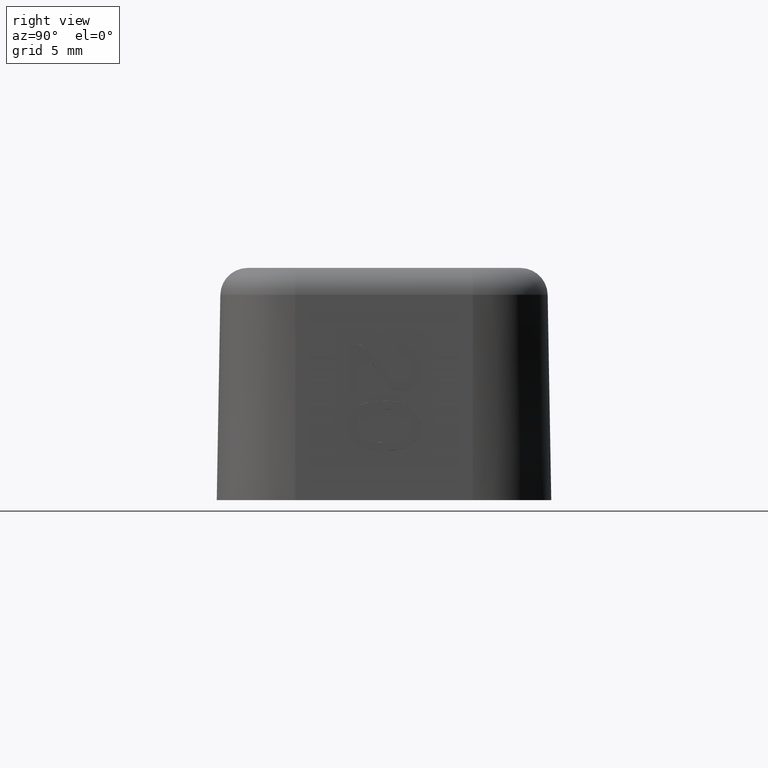
[diagram: clean part render]
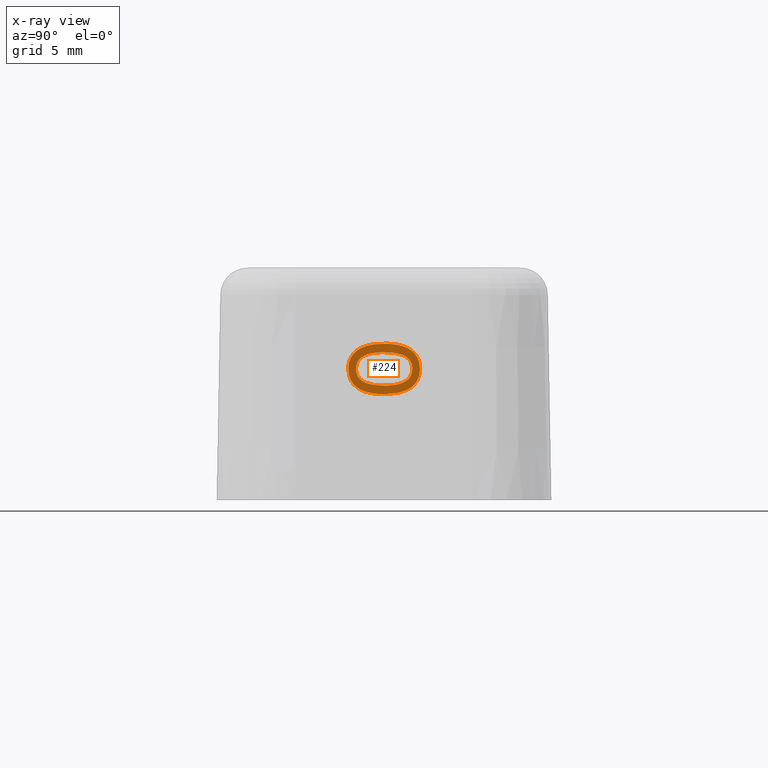
[diagram: x-ray — body ghosted, one internal face saturated and labeled with its STEP entity id]
A machine part, right view, then the same camera in x-ray: the body is ghosted and one INTERNAL B-rep face — a face not visible from any outside direction — is saturated and labeled: STEP entity #224.
In plain terms, the highlighted planar face has unit normal (0.9998, -0, -0.0175).
Its self-contained STEP definition (entity closure, byte-faithful):
#224=ADVANCED_FACE('',(#487,#488),#489,.T.);
#487=FACE_BOUND('',#887,.T.);
#488=FACE_OUTER_BOUND('',#888,.T.);
#489=PLANE('',#889);
#887=EDGE_LOOP('',(#1853,#1854));
#888=EDGE_LOOP('',(#1855,#1856,#1857));
#889=AXIS2_PLACEMENT_3D('',#1858,#1859,#1860);
#1853=ORIENTED_EDGE('',*,*,#2884,.T.);
#1854=ORIENTED_EDGE('',*,*,#2885,.T.);
#1855=ORIENTED_EDGE('',*,*,#2886,.T.);
#1856=ORIENTED_EDGE('',*,*,#2887,.T.);
#1857=ORIENTED_EDGE('',*,*,#2888,.T.);
#1858=CARTESIAN_POINT('',(-28.0298780649777,123.587462167545,-331.289205966349));
#1859=DIRECTION('',(0.999847695156391,-6.65662723956162E-17,-0.0174524064372836));
#1860=DIRECTION('',(0.0174524064372836,3.05046418192992E-16,0.999847695156391));
#2884=EDGE_CURVE('',#3437,#3438,#3439,.T.);
#2885=EDGE_CURVE('',#3438,#3437,#3440,.T.);
#2886=EDGE_CURVE('',#3441,#3442,#3443,.T.);
#2887=EDGE_CURVE('',#3442,#3444,#3445,.T.);
#2888=EDGE_CURVE('',#3444,#3441,#3446,.T.);
#3437=VERTEX_POINT('',#4790);
#3438=VERTEX_POINT('',#4791);
#3439=B_SPLINE_CURVE_WITH_KNOTS('',3,(#4792,#4793,#4794,#4795,#4796,#4797,#4798,#4799,#4800,#4801,#4802,#4803,#4804,#4805,#4806,#4807,#4808,#4809,#4810,#4811,#4812,#4813,#4814,#4815,#4816,#4817,#4818,#4819),.UNSPECIFIED.,.F.,.F.,(4,2,2,2,2,2,2,2,2,2,2,2,2,4),(0.0,0.000338266159121295,0.00067653231824259,0.00101479847736388,0.00135306463648518,0.00169133079560647,0.00202959695472777,0.00270612927297037,0.00338266159121296,0.00405919390945556,0.00439746006857685,0.00473572622769815,0.00507399238681944,0.00541225854594074),.UNSPECIFIED.);
#3440=B_SPLINE_CURVE_WITH_KNOTS('',3,(#4820,#4821,#4822,#4823,#4824,#4825,#4826,#4827,#4828,#4829,#4830,#4831,#4832,#4833,#4834,#4835,#4836,#4837,#4838,#4839,#4840,#4841,#4842,#4843,#4844,#4845),.UNSPECIFIED.,.F.,.F.,(4,2,2,2,2,2,2,2,2,2,2,2,4),(0.0,0.000339268919099863,0.000678537838199726,0.00101780675729959,0.00135707567639945,0.00169634459549931,0.00203561351459918,0.00271415135279891,0.00339268919099864,0.00407122702919837,0.0047497648673981,0.00508903378649797,0.00542830270559783),.UNSPECIFIED.);
#3441=VERTEX_POINT('',#4846);
#3442=VERTEX_POINT('',#4847);
#3443=B_SPLINE_CURVE_WITH_KNOTS('',3,(#4848,#4849,#4850,#4851,#4852,#4853,#4854,#4855,#4856,#4857,#4858,#4859,#4860,#4861),.UNSPECIFIED.,.F.,.F.,(4,2,2,2,2,2,4),(0.003654790492013,0.00455731255545229,0.00500857358717193,0.00545983461889158,0.00591109565061122,0.00636235668233087,0.00726487874577015),.UNSPECIFIED.);
#3444=VERTEX_POINT('',#4862);
#3445=B_SPLINE_CURVE_WITH_KNOTS('',3,(#4863,#4864,#4865,#4866,#4867,#4868,#4869,#4870,#4871,#4872,#4873,#4874,#4875,#4876,#4877,#4878,#4879,#4880,#4881,#4882,#4883,#4884,#4885,#4886,#4887,#4888),.UNSPECIFIED.,.F.,.F.,(4,2,2,2,2,2,2,2,2,2,2,2,4),(0.0,0.000452689793873271,0.000905379587746543,0.00135806938161981,0.00181075917549309,0.00271613876323963,0.00362151835098618,0.00452689793873272,0.004979587732606,0.00543227752647927,0.00588496732035255,0.00633765711422582,0.00724303670197236),.UNSPECIFIED.);
#3446=B_SPLINE_CURVE_WITH_KNOTS('',3,(#4889,#4890,#4891,#4892,#4893,#4894,#4895,#4896,#4897,#4898,#4899,#4900,#4901,#4902),.UNSPECIFIED.,.F.,.F.,(4,2,2,2,2,2,4),(0.0,0.000456848811501623,0.000913697623003246,0.00137054643450487,0.00182739524600649,0.00274109286900975,0.003654790492013),.UNSPECIFIED.);
#4790=CARTESIAN_POINT('',(-22.0796201602783,7.947743191,9.60084108700129));
#4791=CARTESIAN_POINT('',(-22.079506979944,12.072256809,9.60732518401296));
#4792=CARTESIAN_POINT('',(-22.0796201602783,7.947743191,9.60084108700129));
#4793=CARTESIAN_POINT('',(-22.0776326515806,7.947743191,9.71470538403724));
#4794=CARTESIAN_POINT('',(-22.0756779201533,7.96099792114396,9.82669187250339));
#4795=CARTESIAN_POINT('',(-22.0718621889374,8.02541131780538,10.0452949674555));
#4796=CARTESIAN_POINT('',(-22.0700988750524,8.07541004642456,10.14631515227));
#4797=CARTESIAN_POINT('',(-22.0669281594676,8.21186711509721,10.3279653264621));
#4798=CARTESIAN_POINT('',(-22.0655810570799,8.29575744638131,10.4051407705656));
#4799=CARTESIAN_POINT('',(-22.0633221757825,8.48327143980357,10.5345519934247));
#4800=CARTESIAN_POINT('',(-22.062435932954,8.58389568002644,10.5853248110634));
#4801=CARTESIAN_POINT('',(-22.0609807366655,8.79290327468824,10.6686929505984));
#4802=CARTESIAN_POINT('',(-22.0604104440486,8.90223977607243,10.7013649927364));
#4803=CARTESIAN_POINT('',(-22.0595125673401,9.12112389626906,10.7528043149198));
#4804=CARTESIAN_POINT('',(-22.059180357341,9.23127053688734,10.7718366130191));
#4805=CARTESIAN_POINT('',(-22.0584242841553,9.56316247648857,10.8151520168183));
#4806=CARTESIAN_POINT('',(-22.0582362365294,9.78633117469699,10.8259252580896));
#4807=CARTESIAN_POINT('',(-22.0582223042741,10.234854612302,10.826723436461));
#4808=CARTESIAN_POINT('',(-22.0583986693135,10.4597711661587,10.816619490125));
#4809=CARTESIAN_POINT('',(-22.0593897644695,10.9033654942869,10.7598396866627));
#4810=CARTESIAN_POINT('',(-22.0602016474918,11.1259988529907,10.7133269394697));
#4811=CARTESIAN_POINT('',(-22.0623756681076,11.4390005031374,10.5887773818041));
#4812=CARTESIAN_POINT('',(-22.0632759340639,11.5407978313589,10.537201179708));
#4813=CARTESIAN_POINT('',(-22.0655014456582,11.7252896458464,10.4097017058654));
#4814=CARTESIAN_POINT('',(-22.0668540521757,11.8094909695647,10.3322109303767));
#4815=CARTESIAN_POINT('',(-22.0699910123081,11.9444483965175,10.1524946047505));
#4816=CARTESIAN_POINT('',(-22.0717868638063,11.9952508200987,10.0496103413228));
#4817=CARTESIAN_POINT('',(-22.0755517012594,12.0586998592815,9.83392294808855));
#4818=CARTESIAN_POINT('',(-22.0775271338019,12.072256809,9.72075049352613));
#4819=CARTESIAN_POINT('',(-22.079506979944,12.072256809,9.60732518401296));
#4820=CARTESIAN_POINT('',(-22.079506979944,12.072256809,9.60732518401296));
#4821=CARTESIAN_POINT('',(-22.0815005962823,12.072256809,9.49311098048739));
#4822=CARTESIAN_POINT('',(-22.083461423134,12.0590694961169,9.38077528538721));
#4823=CARTESIAN_POINT('',(-22.087290444198,11.9954397703828,9.16141081554271));
#4824=CARTESIAN_POINT('',(-22.0890690608961,11.9459557999266,9.05951393315532));
#4825=CARTESIAN_POINT('',(-22.0922679294549,11.8112029807138,8.87625087615951));
#4826=CARTESIAN_POINT('',(-22.093641236956,11.7277924588566,8.79757414211269));
#4827=CARTESIAN_POINT('',(-22.095940407714,11.5415260202632,8.66585473760327));
#4828=CARTESIAN_POINT('',(-22.0968516646782,11.440716166485,8.61364886109137));
#4829=CARTESIAN_POINT('',(-22.0983408545248,11.2318655958679,8.52833323191599));
#4830=CARTESIAN_POINT('',(-22.0989251325794,11.122439857058,8.4948599645874));
#4831=CARTESIAN_POINT('',(-22.0998442690642,10.9028921491244,8.44220267063873));
#4832=CARTESIAN_POINT('',(-22.1001829357439,10.7924092295269,8.4228004695571));
#4833=CARTESIAN_POINT('',(-22.1009490707813,10.45949505804,8.37890862266032));
#4834=CARTESIAN_POINT('',(-22.1011312993738,10.2356255196236,8.36846875358832));
#4835=CARTESIAN_POINT('',(-22.101117158721,9.78566603547413,8.36927887104164));
#4836=CARTESIAN_POINT('',(-22.1009229550388,9.56004217626186,8.3804047925445));
#4837=CARTESIAN_POINT('',(-22.0998883287652,9.11543659546007,8.43967849205914));
#4838=CARTESIAN_POINT('',(-22.0990499622231,8.89237885641343,8.48770847909045));
#4839=CARTESIAN_POINT('',(-22.0960904033748,8.47470171023503,8.65726149195316));
#4840=CARTESIAN_POINT('',(-22.0939294020817,8.27939874095235,8.7810651731194));
#4841=CARTESIAN_POINT('',(-22.0891402131641,8.07477370919725,9.05543762245234));
#4842=CARTESIAN_POINT('',(-22.0873860419123,8.02543155294219,9.15593402616002));
#4843=CARTESIAN_POINT('',(-22.0835884981732,7.9613289336898,9.37349516126486));
#4844=CARTESIAN_POINT('',(-22.0816088156148,7.947743191,9.4869110990787));
#4845=CARTESIAN_POINT('',(-22.0796201602783,7.947743191,9.60084108700129));
#4846=CARTESIAN_POINT('',(-22.1119897338163,10.0294552500457,7.74638946099661));
#4847=CARTESIAN_POINT('',(-22.079506979944,12.62997406,9.60732518401296));
#4848=CARTESIAN_POINT('',(-22.1119897338165,10.0294552500457,7.74638946099662));
#4849=CARTESIAN_POINT('',(-22.1119897338186,10.3309547658078,7.74638946087298));
#4850=CARTESIAN_POINT('',(-22.1116422399077,10.6293263400868,7.76629737369772));
#4851=CARTESIAN_POINT('',(-22.1102592473012,11.0691267051542,7.84552896705944));
#4852=CARTESIAN_POINT('',(-22.1096526542811,11.2144162595519,7.88028065790957));
#4853=CARTESIAN_POINT('',(-22.108025048002,11.5012649943556,7.97352615918732));
#4854=CARTESIAN_POINT('',(-22.1069943299782,11.6433025387766,8.03257595522254));
#4855=CARTESIAN_POINT('',(-22.1044396923729,11.9082034891506,8.17893104561214));
#4856=CARTESIAN_POINT('',(-22.1028786795612,12.0342242588924,8.26836140969542));
#4857=CARTESIAN_POINT('',(-22.0992430678927,12.2528753546927,8.47664546269129));
#4858=CARTESIAN_POINT('',(-22.0971584446766,12.3466198792893,8.59607344675186));
#4859=CARTESIAN_POINT('',(-22.0901718504042,12.5697718546077,8.99633516454956));
#4860=CARTESIAN_POINT('',(-22.0848439604212,12.62997406,9.30156977724802));
#4861=CARTESIAN_POINT('',(-22.079506979944,12.62997406,9.60732518401296));
#4862=CARTESIAN_POINT('',(-22.0796201602783,7.39002593999999,9.60084108700129));
#4863=CARTESIAN_POINT('',(-22.079506979944,12.62997406,9.60732518401296));
#4864=CARTESIAN_POINT('',(-22.0768458100367,12.62997406,9.75978350589612));
#4865=CARTESIAN_POINT('',(-22.0742206185522,12.6157878412488,9.9101806253144));
#4866=CARTESIAN_POINT('',(-22.0690672660999,12.5491564689413,10.2054159895765));
#4867=CARTESIAN_POINT('',(-22.0665421571555,12.4957613679023,10.3500793841119));
#4868=CARTESIAN_POINT('',(-22.0619446443335,12.3480867652408,10.6134707172825));
#4869=CARTESIAN_POINT('',(-22.0598244773254,12.2518679249019,10.7349350038301));
#4870=CARTESIAN_POINT('',(-22.0562241636601,12.0311757278469,10.9411968355735));
#4871=CARTESIAN_POINT('',(-22.0546911544999,11.9041742437812,11.0290228715374));
#4872=CARTESIAN_POINT('',(-22.0509508305824,11.5054218471848,11.2433058852569));
#4873=CARTESIAN_POINT('',(-22.0494727114151,11.2092044965365,11.3279872756429));
#4874=CARTESIAN_POINT('',(-22.0476874898104,10.6166550808049,11.4302625528749));
#4875=CARTESIAN_POINT('',(-22.0473615197405,10.3161505659351,11.4489373656732));
#4876=CARTESIAN_POINT('',(-22.0473660359382,9.7110390876229,11.4486786328785));
#4877=CARTESIAN_POINT('',(-22.0477080969296,9.41144755274624,11.4290819718103));
#4878=CARTESIAN_POINT('',(-22.0490670352047,8.96943882996911,11.3512284501694));
#4879=CARTESIAN_POINT('',(-22.049662932079,8.82334930154688,11.317089541106));
#4880=CARTESIAN_POINT('',(-22.0512621996018,8.53472476272463,11.2254675660854));
#4881=CARTESIAN_POINT('',(-22.0522721712446,8.39207701998403,11.1676063294177));
#4882=CARTESIAN_POINT('',(-22.0547832687774,8.12500840291571,11.023745648112));
#4883=CARTESIAN_POINT('',(-22.0563202868213,7.99758001263918,10.9356899433511));
#4884=CARTESIAN_POINT('',(-22.0599093761319,7.77592634543682,10.7300711544568));
#4885=CARTESIAN_POINT('',(-22.0619829775748,7.68005638844698,10.6112746073618));
#4886=CARTESIAN_POINT('',(-22.0689301650149,7.45226063873471,10.2132705054755));
#4887=CARTESIAN_POINT('',(-22.0742715021363,7.39002593999999,9.90726550673721));
#4888=CARTESIAN_POINT('',(-22.0796201602783,7.39002593999999,9.60084108700129));
#4889=CARTESIAN_POINT('',(-22.0796201602783,7.39002593999999,9.60084108700129));
#4890=CARTESIAN_POINT('',(-22.0823053146786,7.39002593999999,9.4470086944358));
#4891=CARTESIAN_POINT('',(-22.0849552976107,7.40401145006936,9.29519127393488));
#4892=CARTESIAN_POINT('',(-22.0901589553187,7.47027824675864,8.99707392350416));
#4893=CARTESIAN_POINT('',(-22.0927118550398,7.52355889770151,8.85081839643301));
#4894=CARTESIAN_POINT('',(-22.0973594116936,7.67180671773322,8.58456005405934));
#4895=CARTESIAN_POINT('',(-22.0995020260089,7.76875242409427,8.46180976214705));
#4896=CARTESIAN_POINT('',(-22.1031325763363,7.99159996273136,8.25381567319446));
#4897=CARTESIAN_POINT('',(-22.1046741035621,8.12003598871637,8.16550163757386));
#4898=CARTESIAN_POINT('',(-22.1084244486575,8.52314062855565,7.9506445109566));
#4899=CARTESIAN_POINT('',(-22.1098936116088,8.82249606281039,7.86647622184508));
#4900=CARTESIAN_POINT('',(-22.111667195728,9.42072877080742,7.76486765571115));
#4901=CARTESIAN_POINT('',(-22.1119897338143,9.72422238976675,7.7463894611218));
#4902=CARTESIAN_POINT('',(-22.1119897338165,10.0294552500457,7.74638946099662));